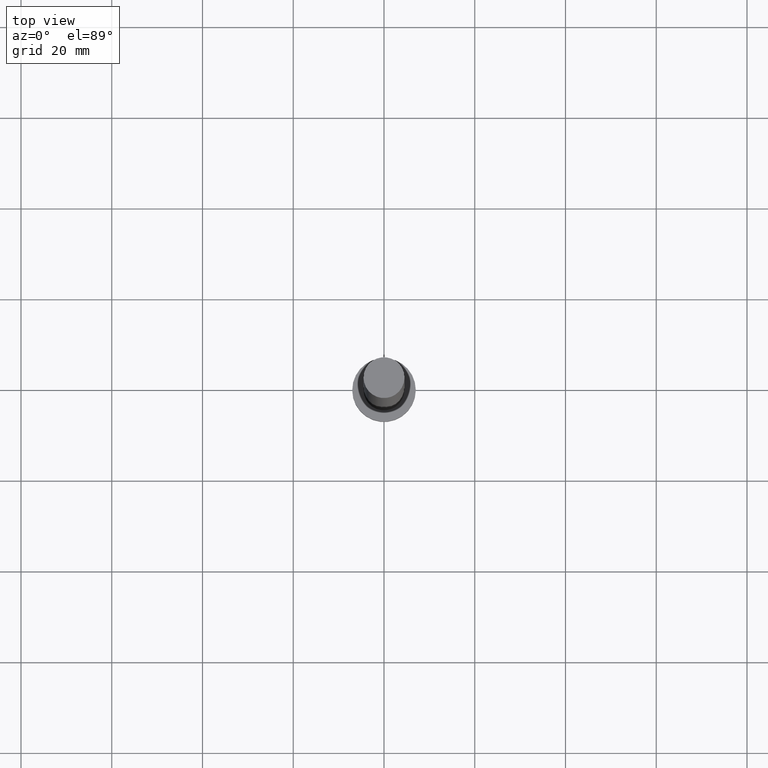
[diagram: clean part render]
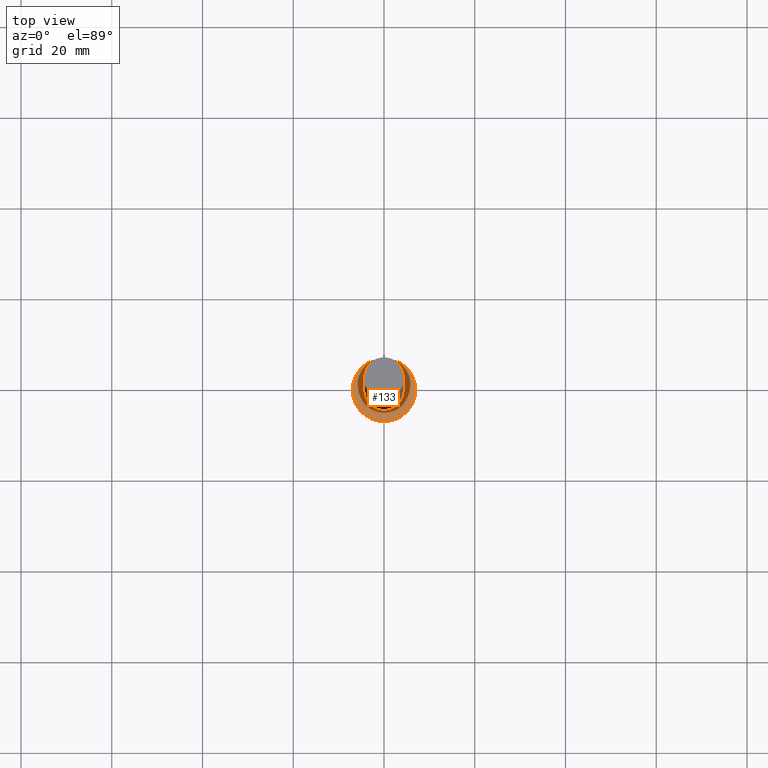
[diagram: same view with one face highlighted and labeled with its STEP entity id]
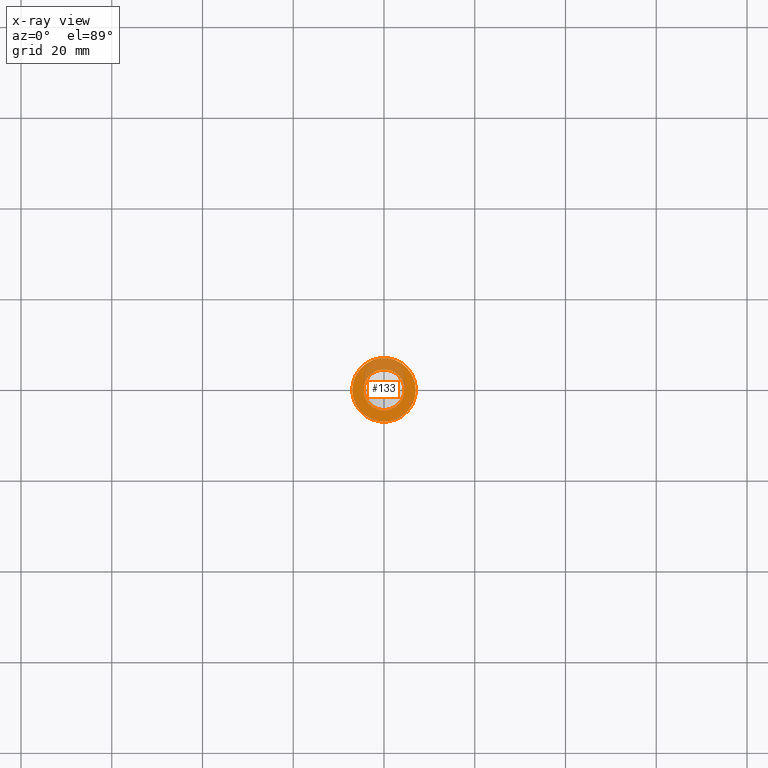
[diagram: x-ray of the same camera — body ghosted, the highlighted face saturated]
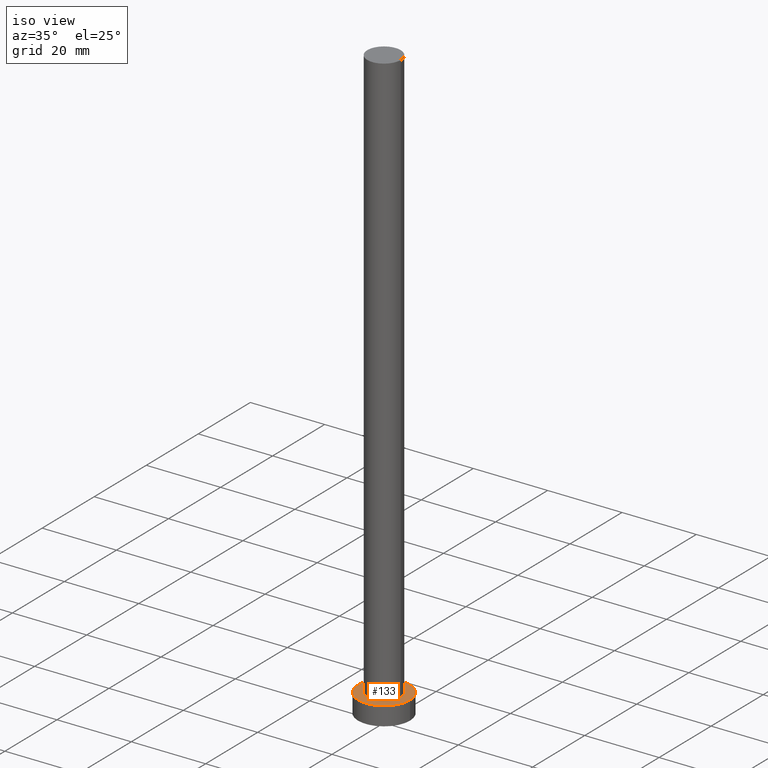
[diagram: same view with one face highlighted and labeled with its STEP entity id]
A machine part, top view. The second image highlights one B-rep face of the part: STEP entity #133.
The next image is the same camera in x-ray: the body ghosted, the highlighted face saturated — about 27% of this face is hidden behind the body in this view.
A second angle (iso view) of the same face is appended — the face is thin or edge-on in the first view.
In plain terms, the highlighted planar face has unit normal (0, 0, 1).
Its self-contained STEP definition (entity closure, byte-faithful):
#2 = CARTESIAN_POINT ( 'NONE',  ( 7.000000000000000000, 8.572527594031473190E-16, 5.000000000000000000 ) ) ;
#3 = CARTESIAN_POINT ( 'NONE',  ( 0.000000000000000000, 0.000000000000000000, 5.000000000000000000 ) ) ;
#5 = VERTEX_POINT ( 'NONE', #2 ) ;
#21 = DIRECTION ( 'NONE',  ( 0.000000000000000000, 0.000000000000000000, 1.000000000000000000 ) ) ;
#29 = ORIENTED_EDGE ( 'NONE', *, *, #98, .T. ) ;
#31 = EDGE_LOOP ( 'NONE', ( #29, #72 ) ) ;
#38 = EDGE_CURVE ( 'NONE', #155, #71, #69, .T. ) ;
#42 = CARTESIAN_POINT ( 'NONE',  ( 0.000000000000000000, 0.000000000000000000, 5.000000000000000000 ) ) ;
#43 = DIRECTION ( 'NONE',  ( 1.000000000000000000, 0.000000000000000000, 0.000000000000000000 ) ) ;
#48 = EDGE_LOOP ( 'NONE', ( #92, #178 ) ) ;
#66 = CARTESIAN_POINT ( 'NONE',  ( -7.000000000000000000, 0.000000000000000000, 5.000000000000000000 ) ) ;
#69 = CIRCLE ( 'NONE', #232, 4.500000000000000000 ) ;
#70 = FACE_OUTER_BOUND ( 'NONE', #31, .T. ) ;
#71 = VERTEX_POINT ( 'NONE', #225 ) ;
#72 = ORIENTED_EDGE ( 'NONE', *, *, #173, .T. ) ;
#76 = AXIS2_PLACEMENT_3D ( 'NONE', #42, #236, #255 ) ;
#83 = DIRECTION ( 'NONE',  ( 1.000000000000000000, 0.000000000000000000, 0.000000000000000000 ) ) ;
#92 = ORIENTED_EDGE ( 'NONE', *, *, #38, .F. ) ;
#98 = EDGE_CURVE ( 'NONE', #153, #5, #141, .T. ) ;
#108 = AXIS2_PLACEMENT_3D ( 'NONE', #136, #194, #116 ) ;
#112 = CIRCLE ( 'NONE', #76, 4.500000000000000000 ) ;
#116 = DIRECTION ( 'NONE',  ( 1.000000000000000000, 0.000000000000000000, -0.000000000000000000 ) ) ;
#121 = EDGE_CURVE ( 'NONE', #71, #155, #112, .T. ) ;
#129 = AXIS2_PLACEMENT_3D ( 'NONE', #3, #21, #83 ) ;
#133 = ADVANCED_FACE ( 'NONE', ( #150, #70 ), #147, .T. ) ;
#134 = CARTESIAN_POINT ( 'NONE',  ( 0.000000000000000000, 0.000000000000000000, 5.000000000000000000 ) ) ;
#136 = CARTESIAN_POINT ( 'NONE',  ( 0.000000000000000000, 0.000000000000000000, 5.000000000000000000 ) ) ;
#141 = CIRCLE ( 'NONE', #177, 7.000000000000000000 ) ;
#147 = PLANE ( 'NONE',  #108 ) ;
#150 = FACE_BOUND ( 'NONE', #48, .T. ) ;
#153 = VERTEX_POINT ( 'NONE', #66 ) ;
#155 = VERTEX_POINT ( 'NONE', #216 ) ;
#165 = CARTESIAN_POINT ( 'NONE',  ( 0.000000000000000000, 0.000000000000000000, 5.000000000000000000 ) ) ;
#166 = CIRCLE ( 'NONE', #129, 7.000000000000000000 ) ;
#171 = DIRECTION ( 'NONE',  ( 1.000000000000000000, 0.000000000000000000, 0.000000000000000000 ) ) ;
#173 = EDGE_CURVE ( 'NONE', #5, #153, #166, .T. ) ;
#177 = AXIS2_PLACEMENT_3D ( 'NONE', #165, #228, #171 ) ;
#178 = ORIENTED_EDGE ( 'NONE', *, *, #121, .F. ) ;
#194 = DIRECTION ( 'NONE',  ( 0.000000000000000000, 0.000000000000000000, 1.000000000000000000 ) ) ;
#216 = CARTESIAN_POINT ( 'NONE',  ( -4.500000000000000000, 0.000000000000000000, 5.000000000000000000 ) ) ;
#217 = DIRECTION ( 'NONE',  ( 0.000000000000000000, 0.000000000000000000, 1.000000000000000000 ) ) ;
#225 = CARTESIAN_POINT ( 'NONE',  ( 4.500000000000000000, 5.510910596163088569E-16, 5.000000000000000000 ) ) ;
#228 = DIRECTION ( 'NONE',  ( 0.000000000000000000, 0.000000000000000000, 1.000000000000000000 ) ) ;
#232 = AXIS2_PLACEMENT_3D ( 'NONE', #134, #217, #43 ) ;
#236 = DIRECTION ( 'NONE',  ( 0.000000000000000000, 0.000000000000000000, 1.000000000000000000 ) ) ;
#255 = DIRECTION ( 'NONE',  ( 1.000000000000000000, 0.000000000000000000, 0.000000000000000000 ) ) ;